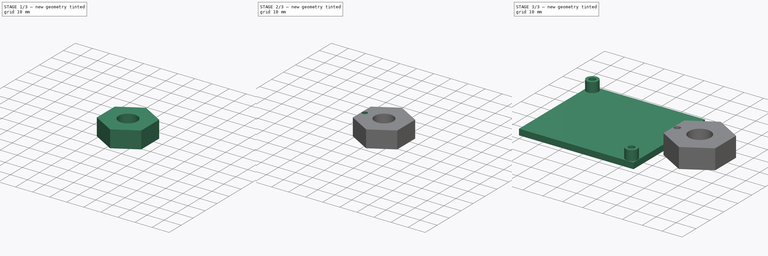
[diagram: build sequence overview — one tinted view per stage of 3, left to right]
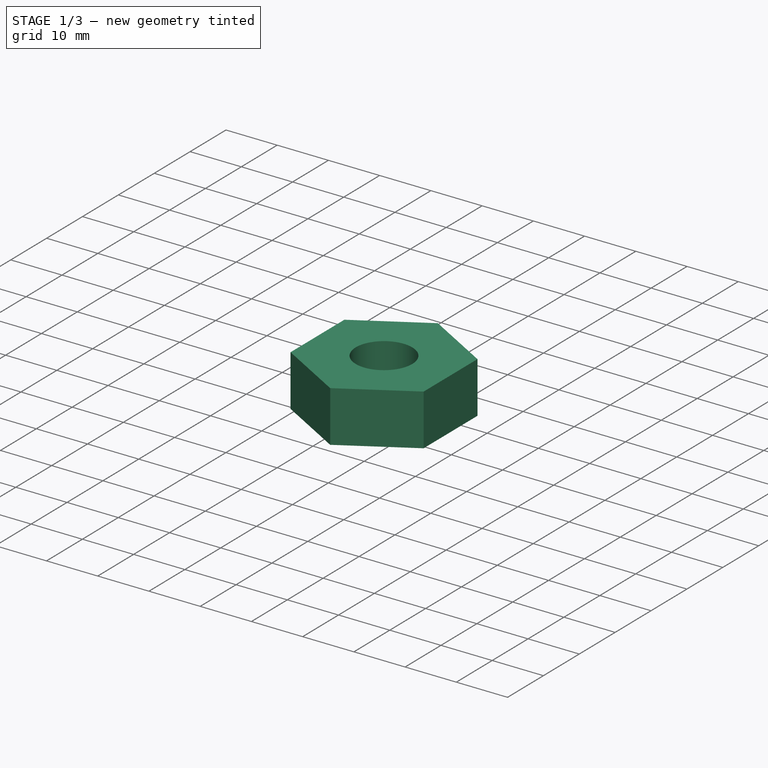
[diagram: stage 1 of 3 — iso view after this stage's code; geometry added in this stage tinted green]
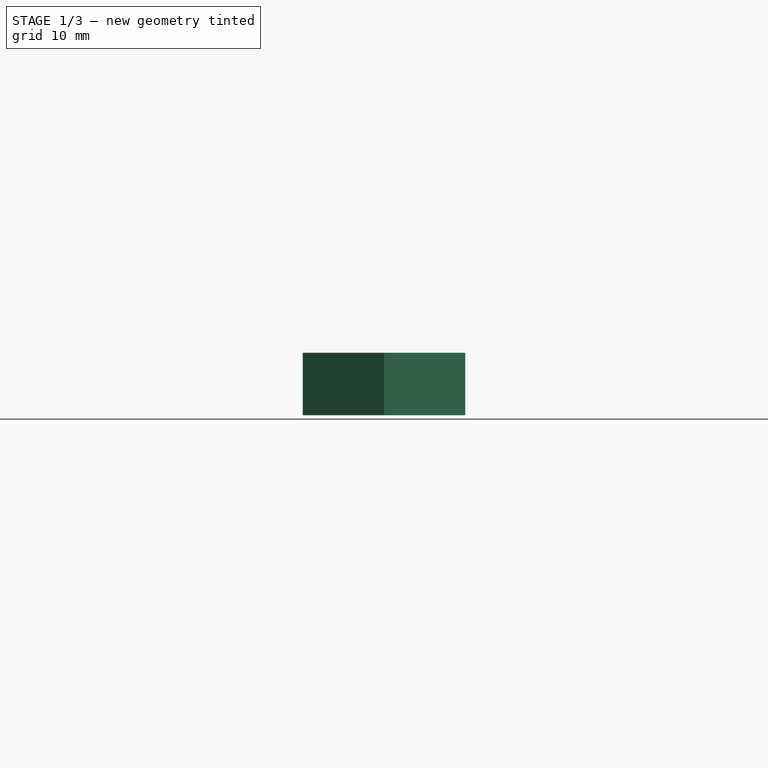
[diagram: stage 1 of 3 — front view after this stage's code; geometry added in this stage tinted green]
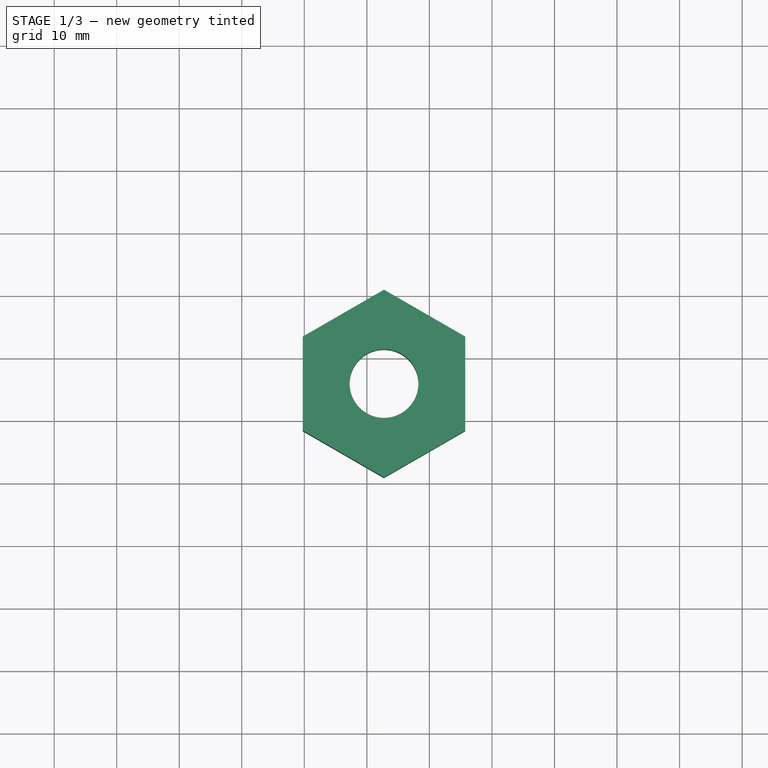
[diagram: stage 1 of 3 — top view after this stage's code; geometry added in this stage tinted green]
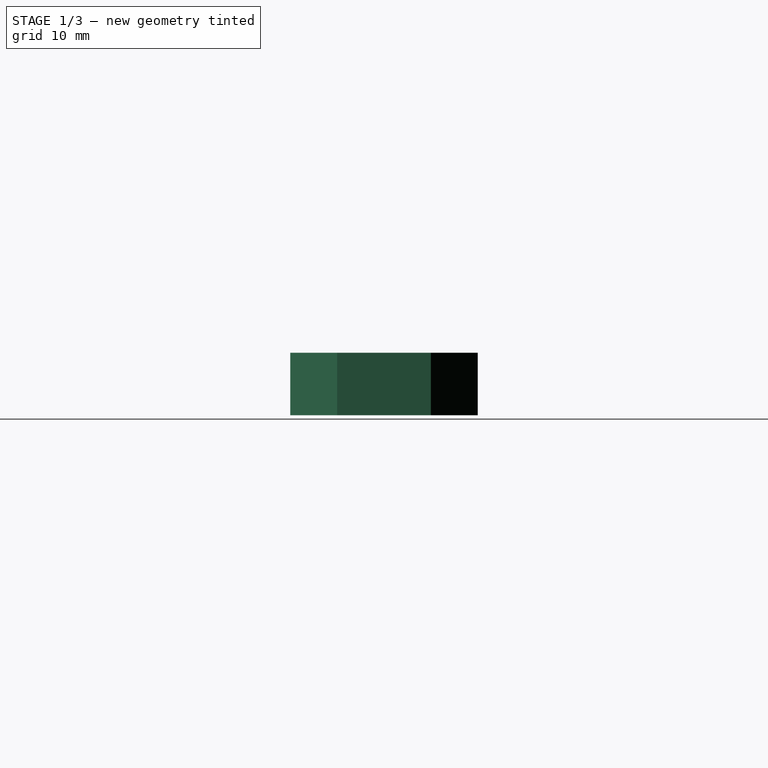
[diagram: stage 1 of 3 — right view after this stage's code; geometry added in this stage tinted green]
FCSTD DOCUMENT  (FreeCAD 0.15R4671 (Git))
Label: CO2_TarotF680P
License: All rights reserved
LicenseURL: http://en.wikipedia.org/wiki/All_rights_reserved
objects: Sketcher::SketchObject×5, PartDesign::Pad×4, PartDesign::Pocket×1
note: 15 computed .brp shape members not serialized (recipe doc carries the construction recipe); baked Part::Feature solids carry a one-line shape summary decoded from their .brp

FEATURE [Sketcher::SketchObject] Sketch001
  sketch-geometry (8):
    g0: LineSegment StartX=0 StartY=51.5 StartZ=0 EndX=57.55 EndY=51.5 EndZ=0
    g1: LineSegment StartX=57.55 StartY=51.5 StartZ=0 EndX=57.55 EndY=0 EndZ=0
    g2: LineSegment StartX=57.55 StartY=0 StartZ=0 EndX=0 EndY=0 EndZ=0
    g3: LineSegment StartX=0 StartY=0 StartZ=0 EndX=0 EndY=51.5 EndZ=0
    g4: LineSegment StartX=-2 StartY=53.3 StartZ=0 EndX=59.75 EndY=53.3 EndZ=0
    g5: LineSegment StartX=59.75 StartY=53.3 StartZ=0 EndX=59.75 EndY=-2 EndZ=0
    g6: LineSegment StartX=59.75 StartY=-2 StartZ=0 EndX=-2 EndY=-2 EndZ=0
    g7: LineSegment StartX=-2 StartY=-2 StartZ=0 EndX=-2 EndY=53.3 EndZ=0
  constraints (23):
    c: Coincident(g0,g1)
    c: Coincident(g1,g2)
    c: Coincident(g2,g3)
    c: Coincident(g3,g0)
    c: Horizontal(g0)
    c: Horizontal(g2)
    c: Vertical(g1)
    c: Vertical(g3)
    c: DistanceY(g3) = 51.5
    c: DistanceX(g0) = 57.55
    c: Coincident(g2,g-1)
    c: Coincident(g4,g5)
    c: Coincident(g5,g6)
    c: Coincident(g6,g7)
    c: Coincident(g7,g4)
    c: Horizontal(g4)
    c: Horizontal(g6)
    c: Vertical(g5)
    c: Vertical(g7)
    c: Distance(g6) = 61.75
    c: DistanceY(g5) = -55.3
    c: DistanceX(g-1,g6) = -2
    c: DistanceY(g-1,g6) = -2
FEATURE [PartDesign::Pad] Pad001
  Length = 17
  Length2 = 100
  Sketch = -> Sketch001
  Type = 0
FEATURE [Sketcher::SketchObject] Sketch002
  ExternalGeometry = -> [Pad001]
  Placement = pos=(0,0,10) rot=(0,0,1;0rad)
  sketch-geometry (8):
    g0: LineSegment StartX=85.7308 StartY=33.4 StartZ=0 EndX=72.7404 EndY=40.9 EndZ=0
    g1: LineSegment StartX=72.7404 StartY=40.9 StartZ=0 EndX=59.75 EndY=33.4 EndZ=0
    g2: LineSegment StartX=59.75 StartY=33.4 StartZ=0 EndX=59.75 EndY=18.4 EndZ=0
    g3: LineSegment StartX=59.75 StartY=18.4 StartZ=0 EndX=72.7404 EndY=10.9 EndZ=0
    g4: LineSegment StartX=72.7404 StartY=10.9 StartZ=0 EndX=85.7308 EndY=18.4 EndZ=0
    g5: LineSegment StartX=85.7308 StartY=18.4 StartZ=0 EndX=85.7308 EndY=33.4 EndZ=0
    g6: Circle [constr] CenterX=72.7404 CenterY=25.9 CenterZ=0 NormalX=0 NormalY=0 NormalZ=1 Radius=15
    g7: Circle CenterX=72.7404 CenterY=25.9 CenterZ=0 NormalX=0 NormalY=0 NormalZ=1 Radius=5.5
  constraints (19):
    c: Coincident(g0,g1)
    c: Coincident(g1,g2)
    c: Coincident(g2,g3)
    c: Coincident(g3,g4)
    c: Coincident(g4,g5)
    c: Coincident(g5,g0)
    c: Equal(g0, g1-g5) x5
    c: PointOnObject(g0,g6)
    c: PointOnObject(g1,g6)
    c: PointOnObject(g2,g6)
    c: PointOnObject(g3,g6)
    c: PointOnObject(g4,g6)
    c: PointOnObject(g5,g6)
    c: Radius(g6) = 15
    c: DistanceY(g-3,g6) = 27.9
    c: Angle(g2,g-3) = 0
    c: DistanceX(g2,g-3) = 0
    c: Radius(g7) = 5.5
    c: Coincident(g6,g7)
FEATURE [PartDesign::Pad] Pad004
  Length = 10
  Length2 = 100
  Placement = pos=(0,0,10) rot=(0,0,1;0rad)
  Reversed = true
  Sketch = -> Sketch002
  Type = 0
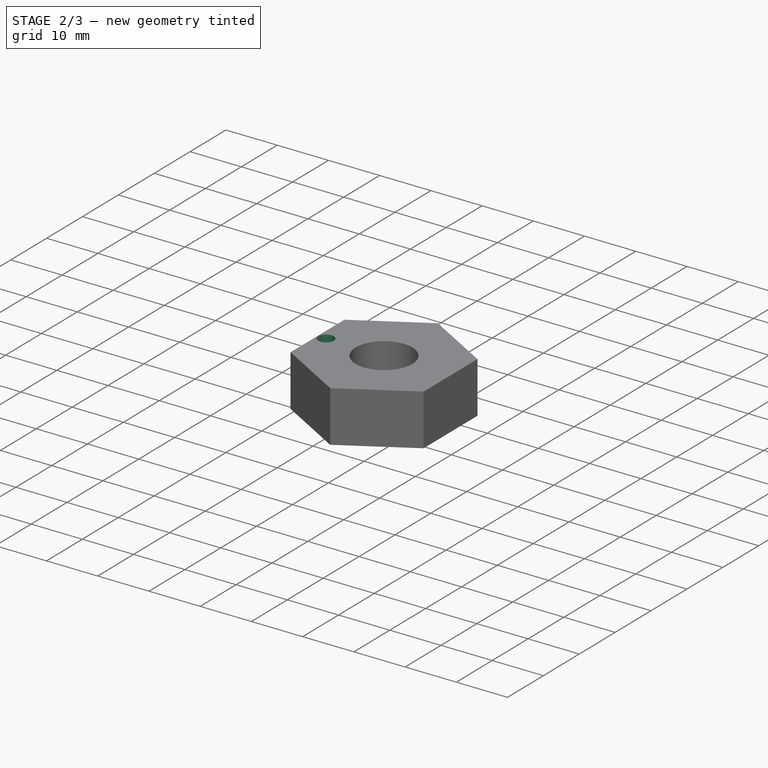
[diagram: stage 2 of 3 — iso view after this stage's code; geometry added in this stage tinted green]
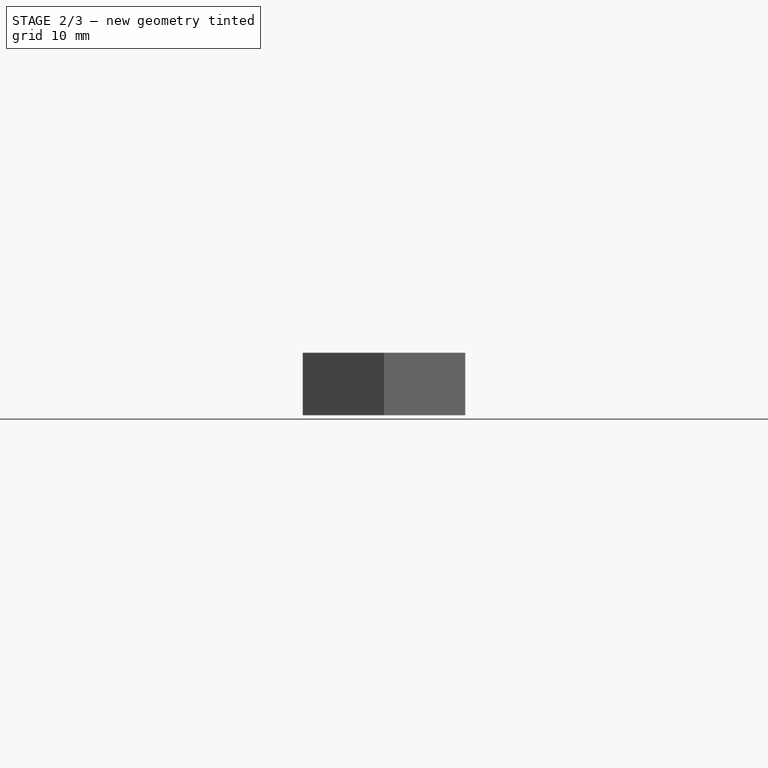
[diagram: stage 2 of 3 — front view after this stage's code; geometry added in this stage tinted green]
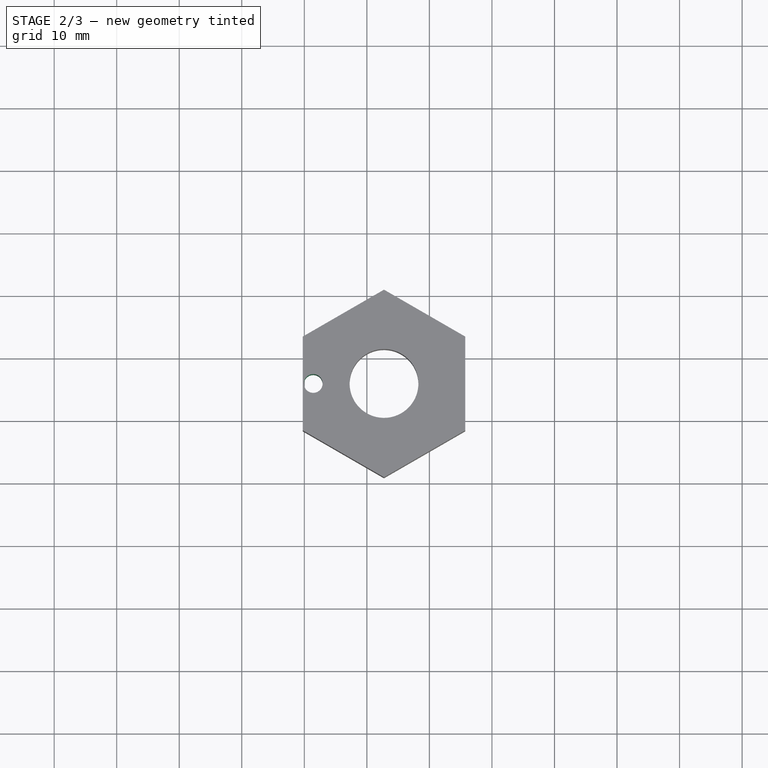
[diagram: stage 2 of 3 — top view after this stage's code; geometry added in this stage tinted green]
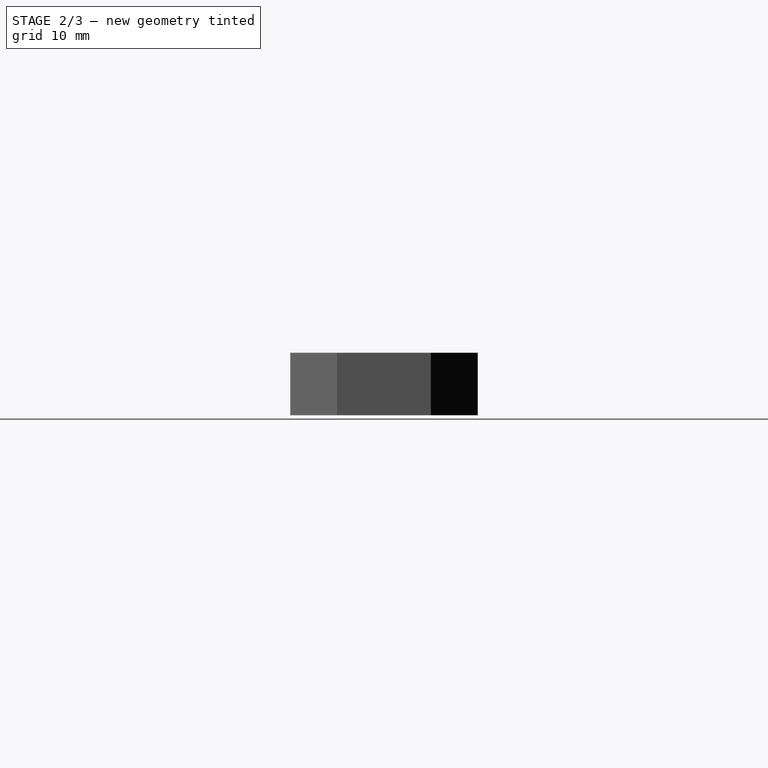
[diagram: stage 2 of 3 — right view after this stage's code; geometry added in this stage tinted green]
FEATURE [Sketcher::SketchObject] Sketch004
  ExternalGeometry = -> [Pad004]
  Placement = pos=(0,0,10) rot=(0,0,1;0rad)
  Support = -> Pad004 [Face8]
  sketch-geometry (1):
    g0: Circle CenterX=61.4281 CenterY=25.9 CenterZ=0 NormalX=0 NormalY=0 NormalZ=1 Radius=1.5
  constraints (2):
    c: Radius(g0) = 1.5
    c: DistanceY(g0,g-3) = 0
FEATURE [PartDesign::Pocket] Pocket
  Length = 10
  Placement = pos=(0,0,10) rot=(0,0,1;0rad)
  Sketch = -> Sketch004
  Type = 0
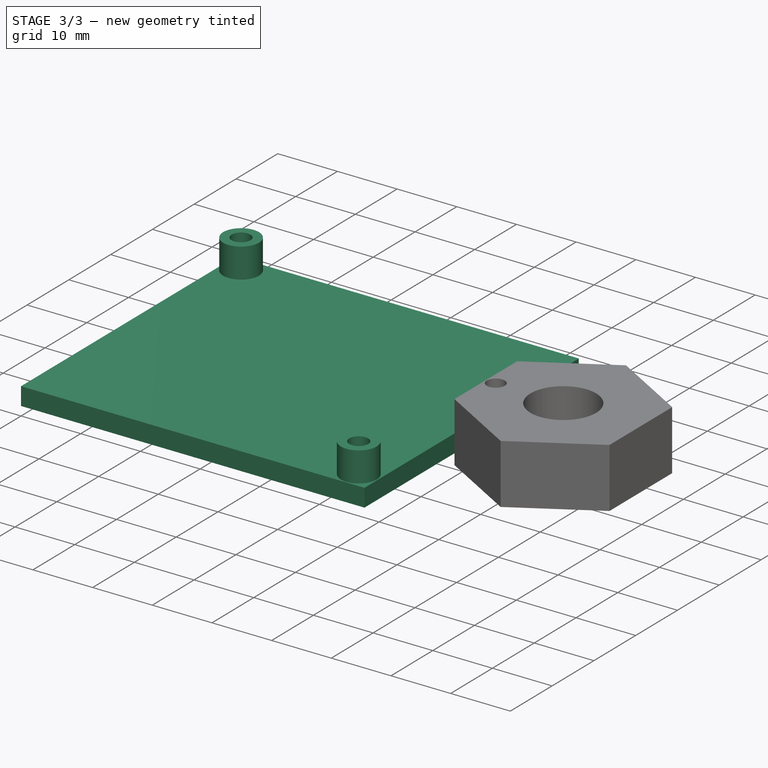
[diagram: stage 3 of 3 — iso view after this stage's code; geometry added in this stage tinted green]
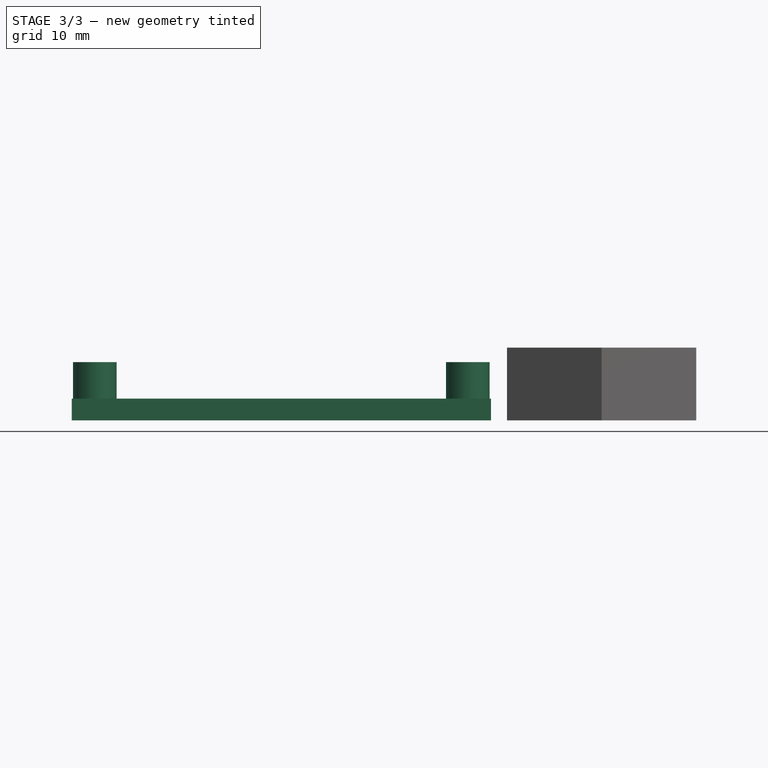
[diagram: stage 3 of 3 — front view after this stage's code; geometry added in this stage tinted green]
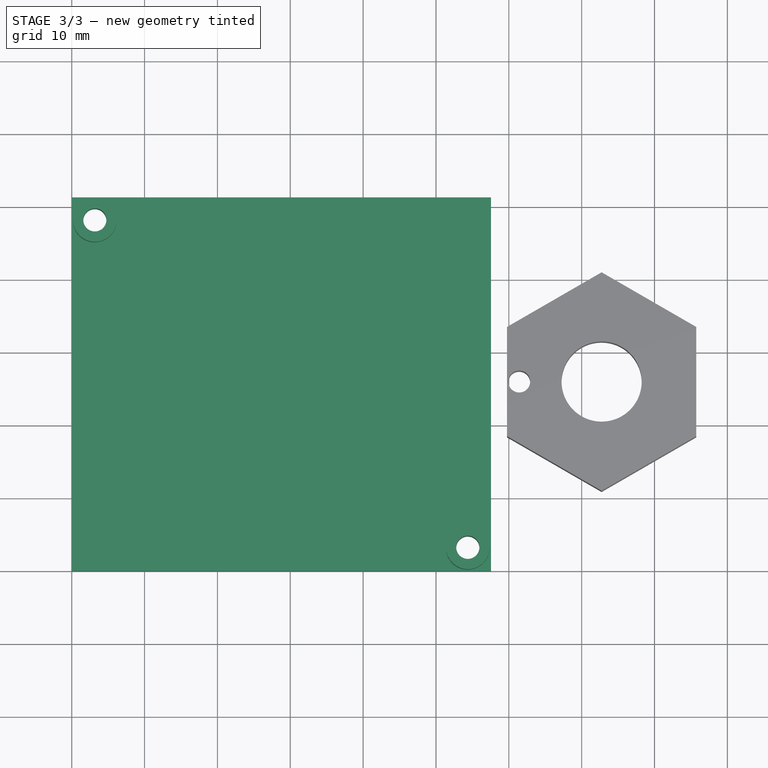
[diagram: stage 3 of 3 — top view after this stage's code; geometry added in this stage tinted green]
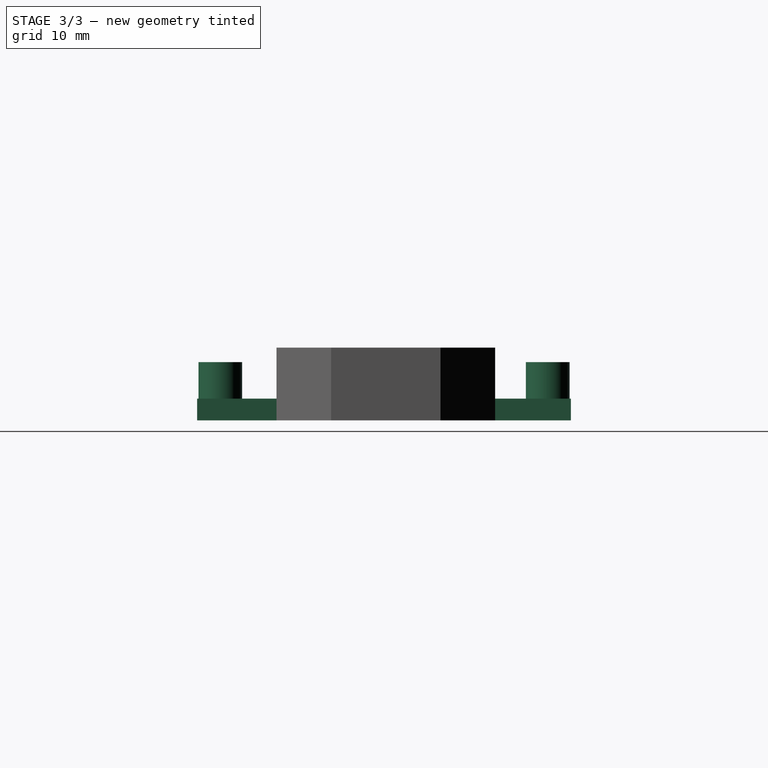
[diagram: stage 3 of 3 — right view after this stage's code; geometry added in this stage tinted green]
FEATURE [Sketcher::SketchObject] Sketch
  sketch-geometry (6):
    g0: LineSegment StartX=0 StartY=51.3 StartZ=0 EndX=57.55 EndY=51.3 EndZ=0
    g1: LineSegment StartX=57.55 StartY=51.3 StartZ=0 EndX=57.55 EndY=0 EndZ=0
    g2: LineSegment StartX=57.55 StartY=0 StartZ=0 EndX=0 EndY=0 EndZ=0
    g3: LineSegment StartX=0 StartY=0 StartZ=0 EndX=0 EndY=51.3 EndZ=0
    g4: Circle CenterX=54.37 CenterY=3.18 CenterZ=0 NormalX=0 NormalY=0 NormalZ=1 Radius=1.59
    g5: Circle CenterX=3.17 CenterY=48.13 CenterZ=0 NormalX=0 NormalY=0 NormalZ=1 Radius=1.585
  constraints (17):
    c: Coincident(g0,g1)
    c: Coincident(g1,g2)
    c: Coincident(g2,g3)
    c: Coincident(g3,g0)
    c: Horizontal(g0)
    c: Horizontal(g2)
    c: Vertical(g1)
    c: Vertical(g3)
    c: DistanceY(g3) = 51.3
    c: DistanceX(g0) = 57.55
    c: Radius(g5) = 1.585
    c: Radius(g4) = 1.59
    c: DistanceX(g0,g5) = 3.17
    c: DistanceX(g1,g4) = -3.18
    c: DistanceY(g1,g4) = 3.18
    c: DistanceY(g5,g0) = 3.17
    c: Coincident(g2,g-1)
FEATURE [PartDesign::Pad] Pad
  Length = 3
  Length2 = 100
  Sketch = -> Sketch
  Type = 0
FEATURE [Sketcher::SketchObject] Sketch003
  Placement = pos=(0,0,3) rot=(0,0,1;0rad)
  Support = -> Pad [Face8]
  sketch-geometry (4):
    g0: Circle CenterX=3.17 CenterY=48.13 CenterZ=0 NormalX=0 NormalY=0 NormalZ=1 Radius=1.585
    g1: Circle CenterX=3.17 CenterY=48.13 CenterZ=0 NormalX=0 NormalY=0 NormalZ=1 Radius=3
    g2: Circle CenterX=54.37 CenterY=3.18 CenterZ=0 NormalX=0 NormalY=0 NormalZ=1 Radius=1.59
    g3: Circle CenterX=54.37 CenterY=3.18 CenterZ=0 NormalX=0 NormalY=0 NormalZ=1 Radius=3
  constraints (10):
    c: Radius(g0) = 1.585
    c: DistanceY(g-1,g0) = 48.13
    c: DistanceX(g-1,g0) = 3.17
    c: Coincident(g0,g1)
    c: Radius(g1) = 3
    c: Coincident(g2,g3)
    c: Radius(g2) = 1.59
    c: Radius(g3) = 3
    c: DistanceY(g-1,g2) = 3.18
    c: DistanceX(g-1,g2) = 54.37
FEATURE [PartDesign::Pad] Pad005
  Length = 5
  Length2 = 100
  Sketch = -> Sketch003
  Type = 0
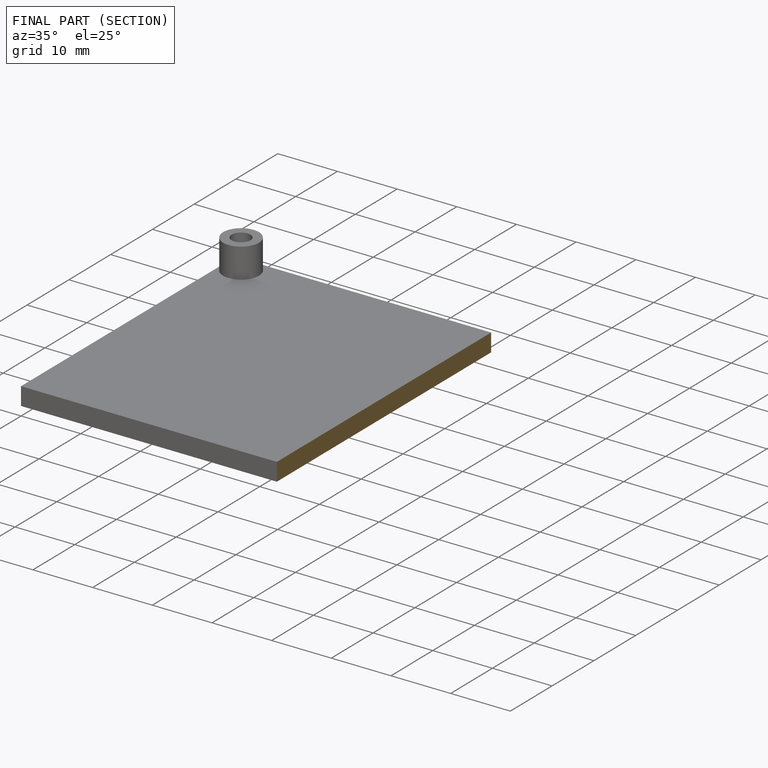
[diagram: finished part — half-section view (interior)]
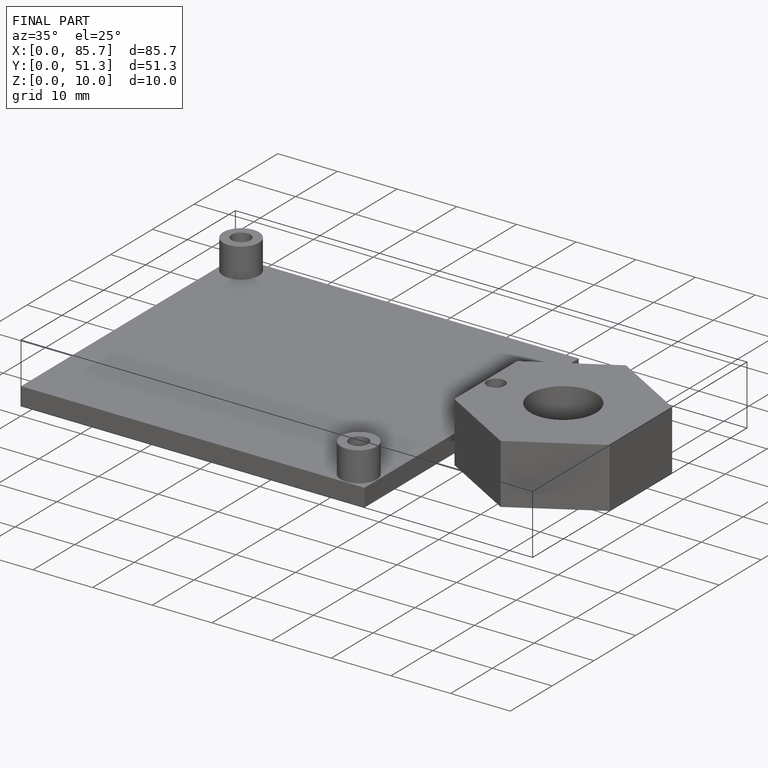
[diagram: finished part — iso view with bounding-box wireframe]
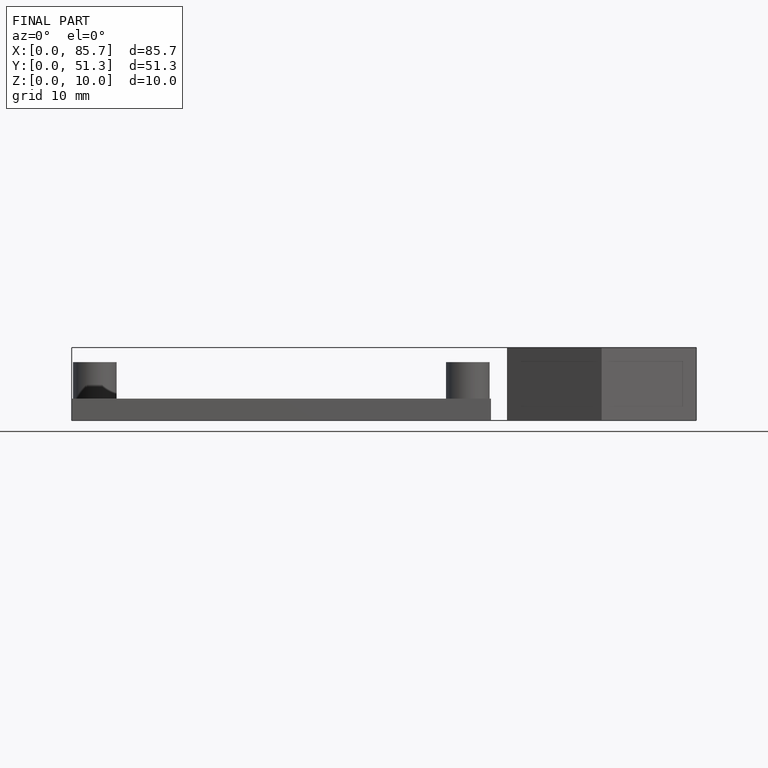
[diagram: finished part — front view with bounding-box wireframe]
